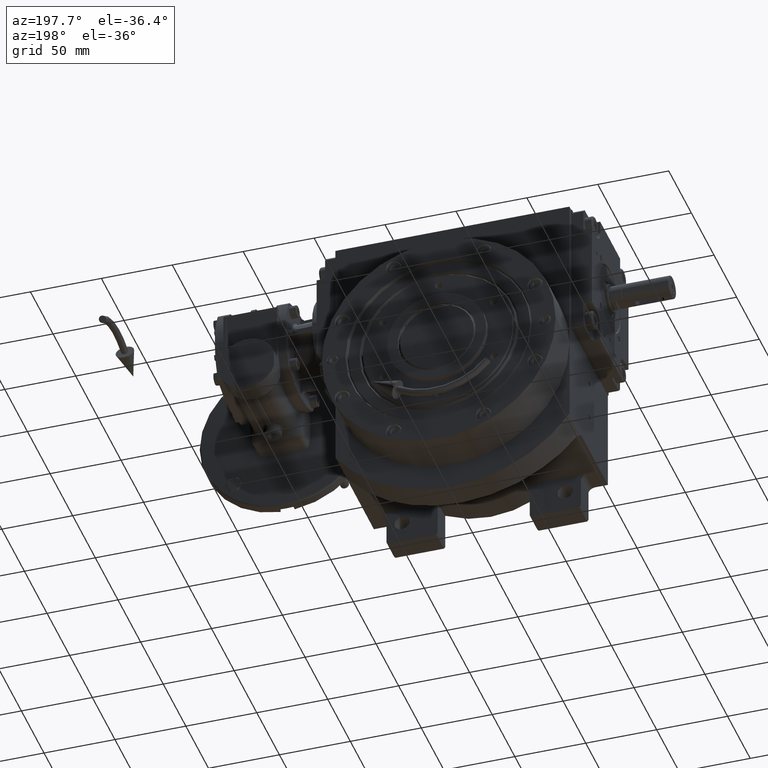
[diagram: clean part render]
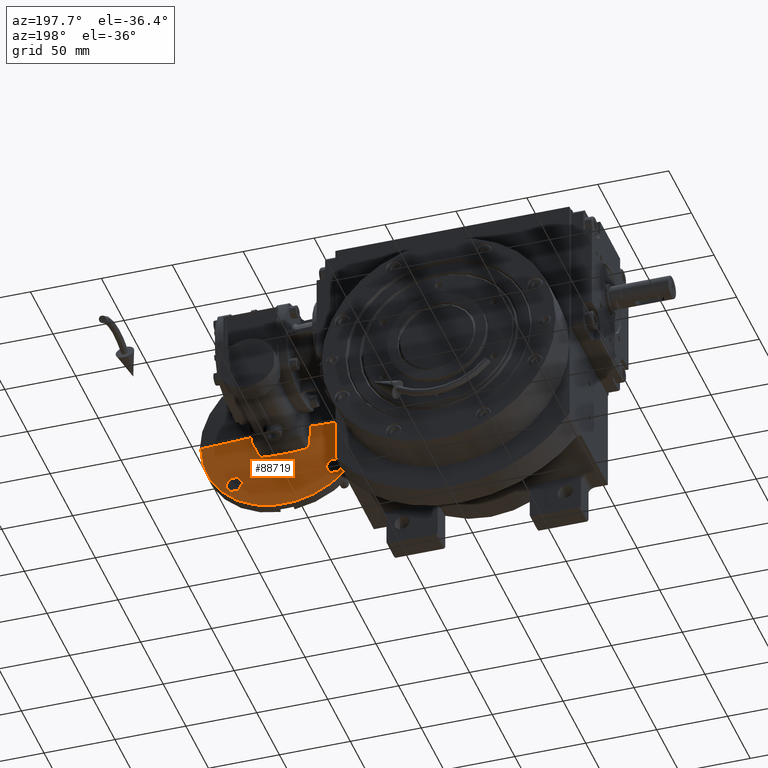
[diagram: same view with one face highlighted and labeled with its STEP entity id]
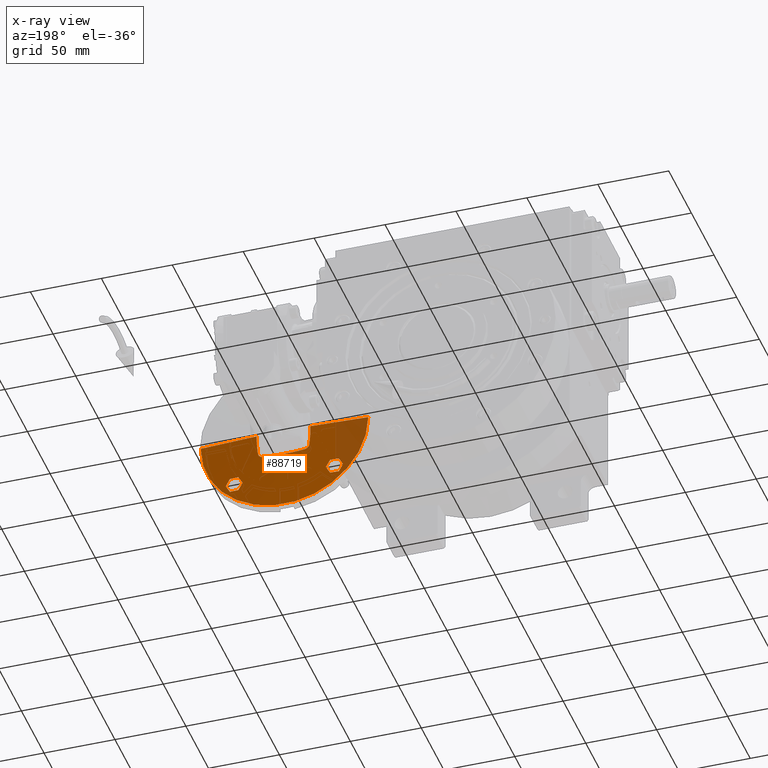
[diagram: x-ray of the same camera — body ghosted, the highlighted face saturated]
A machine part, auxiliary view. The second image highlights one B-rep face of the part: STEP entity #88719.
The next image is the same camera in x-ray: the body ghosted, the highlighted face saturated — about 15% of this face is hidden behind the body in this view.
In plain terms, the highlighted conical surface has half-angle 87.103 deg.
Its self-contained STEP definition (entity closure, byte-faithful):
#1003 = CARTESIAN_POINT ( 'NONE',  ( -32.00585476977998667, 67.95386209068189487, 41.55432077953976489 ) ) ;
#1212 = CARTESIAN_POINT ( 'NONE',  ( -37.64607838296998921, 58.15533905933165215, 41.40453838840976886 ) ) ;
#1278 = CARTESIAN_POINT ( 'NONE',  ( 18.79542182934317651, 35.00459606885684849, 39.97883802025270228 ) ) ;
#1961 = VERTEX_POINT ( 'NONE', #89464 ) ;
#1998 = EDGE_CURVE ( 'NONE', #70187, #21463, #18428, .T. ) ;
#2188 = CARTESIAN_POINT ( 'NONE',  ( -8.703486706035672427, 46.68434787104853001, 40.00677571769369223 ) ) ;
#2220 = CARTESIAN_POINT ( 'NONE',  ( 18.39537536237713056, 40.09061341052760241, 40.07635317051466473 ) ) ;
#2680 = CARTESIAN_POINT ( 'NONE',  ( -4.653153046060355180, 46.91032088017187363, 39.94911206547149618 ) ) ;
#3256 = CARTESIAN_POINT ( 'NONE',  ( -18.92824910801079952, 32.15311443586601570, 39.94440566324492892 ) ) ;
#3473 = CARTESIAN_POINT ( 'NONE',  ( 30.32052400173000706, 65.03478357286188327, 41.38584311701976759 ) ) ;
#3749 = B_SPLINE_CURVE_WITH_KNOTS ( 'NONE', 3,
 ( #76764, #92098, #30818, #84672, #17919, #77718 ),
 .UNSPECIFIED., .F., .F.,
 ( 4, 1, 1, 4 ),
 ( 0.000000000000000000, 0.3333333333333000081, 0.6666666666667000474, 1.000000000000000000 ),
 .UNSPECIFIED. ) ;
#4354 = ORIENTED_EDGE ( 'NONE', *, *, #24362, .F. ) ;
#4597 = EDGE_CURVE ( 'NONE', #28575, #38188, #78197, .T. ) ;
#4992 = CARTESIAN_POINT ( 'NONE',  ( 3.307533421194631451, 46.95442179101929270, 39.93748087588320317 ) ) ;
#5114 = CARTESIAN_POINT ( 'NONE',  ( -39.35572123152000756, 66.82647388740188887, 41.76080980303999723 ) ) ;
#5276 = CARTESIAN_POINT ( 'NONE',  ( -32.35311765953998986, 58.15533905933165215, 41.20187174333976543 ) ) ;
#5840 = CARTESIAN_POINT ( 'NONE',  ( -17.27818441440031805, 44.64969037339514557, 40.17783912591538353 ) ) ;
#6387 = CARTESIAN_POINT ( 'NONE',  ( -29.35089625976000605, 63.35533905933188237, 41.28907612578000652 ) ) ;
#6463 = EDGE_CURVE ( 'NONE', #90730, #43112, #45032, .T. ) ;
#6594 = CARTESIAN_POINT ( 'NONE',  ( 29.35089625976000605, 63.35533905933188237, 41.28907612578000652 ) ) ;
#7681 = CARTESIAN_POINT ( 'NONE',  ( 18.78171789322339436, 35.23463356859000584, 39.98232443131080061 ) ) ;
#7794 = VERTEX_POINT ( 'NONE', #65136 ) ;
#8166 = CARTESIAN_POINT ( 'NONE',  ( 18.26347028607235146, 41.33794503218003058, 40.10689626045934375 ) ) ;
#8628 = CARTESIAN_POINT ( 'NONE',  ( -3.759415430785205015, 46.94112730932102551, 39.94101155117419211 ) ) ;
#8667 = CARTESIAN_POINT ( 'NONE',  ( 18.86221104927104619, 33.75433396995044433, 39.96164650814401398 ) ) ;
#9000 = CARTESIAN_POINT ( 'NONE',  ( 12.03235637888628951, 46.42376113785291381, 40.07169622953545485 ) ) ;
#9154 = CARTESIAN_POINT ( 'NONE',  ( 18.10570677838000009, 42.62294815769141110, 40.14154128409975897 ) ) ;
#9838 = CARTESIAN_POINT ( 'NONE',  ( 41.00616503775999888, 62.74285675870189039, 41.68347771132976476 ) ) ;
#10822 = CARTESIAN_POINT ( 'NONE',  ( -14.62294780272999084, 46.10570682196141945, 40.14154127452976439 ) ) ;
#10962 = B_SPLINE_CURVE_WITH_KNOTS ( 'NONE', 3,
 ( #38835, #16039, #46225, #76350, #8628, #78277, #64447, #2680, #55567, #41725, #94594, #49133, #48152, #42224, #18477, #26875, #2188, #32345, #47666, #57043, #85692, #77787 ),
 .UNSPECIFIED., .F., .F.,
 ( 4, 2, 2, 1, 1, 2, 2, 2, 1, 1, 2, 2, 4 ),
 ( 0.4999808317626868170, 0.6249856238220141691, 0.6327984233257222257, 0.6406112228294301714, 0.6562368218368461736, 0.6874880198516780672, 0.7499904158813419652, 0.7578032153850500219, 0.7656160148887581895, 0.7812416138961741918, 0.8124928119110064184, 0.8749952079406708716, 1.000000000000000000 ),
 .UNSPECIFIED. ) ;
#11428 = CARTESIAN_POINT ( 'NONE',  ( 6.675642760527762398, 46.81430497254617507, 39.97401120194078317 ) ) ;
#11634 = CARTESIAN_POINT ( 'NONE',  ( -18.61236518150219510, 37.64308999784397969, 40.02449364061558867 ) ) ;
#11647 = ORIENTED_EDGE ( 'NONE', *, *, #35514, .T. ) ;
#11747 = CARTESIAN_POINT ( 'NONE',  ( -59.05053774742999195, 28.00000000000093436, 41.95195492215976429 ) ) ;
#12389 = CARTESIAN_POINT ( 'NONE',  ( -41.35978185890002123, 63.35533905933188237, 41.71721783744000334 ) ) ;
#12452 = EDGE_CURVE ( 'NONE', #14382, #51955, #45264, .T. ) ;
#12559 = CARTESIAN_POINT ( 'NONE',  ( 17.27817697784776030, 44.64968503486191054, 40.17783866744353816 ) ) ;
#12876 = CARTESIAN_POINT ( 'NONE',  ( -38.67177040355998230, 58.69956664735165219, 41.46236169687976059 ) ) ;
#12970 = ORIENTED_EDGE ( 'NONE', *, *, #29271, .F. ) ;
#14219 = CARTESIAN_POINT ( 'NONE',  ( -18.05156585783624479, 43.06393259781779648, 40.15343068424608930 ) ) ;
#14382 = VERTEX_POINT ( 'NONE', #85755 ) ;
#14486 = CARTESIAN_POINT ( 'NONE',  ( 32.01829038265000094, 58.73527691466165379, 41.20948658544976695 ) ) ;
#14801 = CARTESIAN_POINT ( 'NONE',  ( 38.35756045910999745, 58.15533905933165215, 41.43284179079976326 ) ) ;
#14971 = CARTESIAN_POINT ( 'NONE',  ( 29.35089625976000605, 63.35533905933188237, 41.28907612578000652 ) ) ;
#16039 = CARTESIAN_POINT ( 'NONE',  ( -1.205514651385882541, 46.99999766876038620, 39.92530108666492339 ) ) ;
#16357 = CARTESIAN_POINT ( 'NONE',  ( 18.10570677838000009, 42.62294815769141110, 40.14154128409975897 ) ) ;
#16510 = CARTESIAN_POINT ( 'NONE',  ( -32.35311765953998986, 58.15533905933165215, 41.20187174333976543 ) ) ;
#16576 = CARTESIAN_POINT ( 'NONE',  ( 18.95335393573451555, 31.34586320199458953, 39.93776278507416322 ) ) ;
#16706 = ORIENTED_EDGE ( 'NONE', *, *, #29739, .F. ) ;
#17039 = VECTOR ( 'NONE', #72471, 1000.000000000000114 ) ;
#17207 = CARTESIAN_POINT ( 'NONE',  ( 41.02507180973000089, 63.93507387029188749, 41.72340524457000299 ) ) ;
#17214 = EDGE_CURVE ( 'NONE', #42198, #21463, #78617, .T. ) ;
#17919 = CARTESIAN_POINT ( 'NONE',  ( 37.66676103572999779, 68.55533905933189942, 41.76453698669976689 ) ) ;
#18037 = EDGE_CURVE ( 'NONE', #64209, #84226, #36083, .T. ) ;
#18309 = CARTESIAN_POINT ( 'NONE',  ( 31.32106462518000001, 66.76777076771189456, 41.48582392447000444 ) ) ;
#18375 = CARTESIAN_POINT ( 'NONE',  ( 7.053735655023313456, 46.79251809520259542, 39.97957659328078250 ) ) ;
#18428 = B_SPLINE_CURVE_WITH_KNOTS ( 'NONE', 3,
 ( #93851, #78039, #70648, #31613, #9838, #78520 ),
 .UNSPECIFIED., .F., .F.,
 ( 4, 1, 1, 4 ),
 ( 0.000000000000000000, 0.3333333333333000081, 0.6666666666667000474, 1.000000000000000000 ),
 .UNSPECIFIED. ) ;
#18477 = CARTESIAN_POINT ( 'NONE',  ( -7.728046292074904677, 46.75104225326969498, 39.99008551386199173 ) ) ;
#18528 = CARTESIAN_POINT ( 'NONE',  ( 17.92543019919315483, 43.48967417349379616, 40.16246868723585806 ) ) ;
#18833 = EDGE_CURVE ( 'NONE', #81476, #53457, #92363, .T. ) ;
#19546 = CARTESIAN_POINT ( 'NONE',  ( -18.90320291073076220, 32.82582356061124784, 39.95097023124787938 ) ) ;
#20749 = CARTESIAN_POINT ( 'NONE',  ( -32.35311765953998986, 58.15533905933165215, 41.20187174333976543 ) ) ;
#21463 = VERTEX_POINT ( 'NONE', #95578 ) ;
#21659 = B_SPLINE_CURVE_WITH_KNOTS ( 'NONE', 3,
 ( #76110, #38590, #68730, #62271, #1003, #31148 ),
 .UNSPECIFIED., .F., .F.,
 ( 4, 1, 1, 4 ),
 ( 0.000000000000000000, 0.3333333333333000081, 0.6666666666667000474, 1.000000000000000000 ),
 .UNSPECIFIED. ) ;
#23031 = CARTESIAN_POINT ( 'NONE',  ( 18.99999894939999479, 28.00000000001094591, 39.92530130046976211 ) ) ;
#23237 = CARTESIAN_POINT ( 'NONE',  ( -14.62294780272999084, 46.10570682196141945, 40.14154127452976439 ) ) ;
#23410 = CARTESIAN_POINT ( 'NONE',  ( 5.755536990199312014E-08, 47.00000000057552541, 39.92530120483741030 ) ) ;
#23628 = CARTESIAN_POINT ( 'NONE',  ( 0.000000000000000000, 28.00000000000094147, 40.93862802361976350 ) ) ;
#24137 = EDGE_CURVE ( 'NONE', #43112, #51712, #56807, .T. ) ;
#24361 = VERTEX_POINT ( 'NONE', #23410 ) ;
#24362 = EDGE_CURVE ( 'NONE', #1961, #84226, #86394, .T. ) ;
#24433 = EDGE_CURVE ( 'NONE', #53171, #42198, #3749, .T. ) ;
#24603 = DIRECTION ( 'NONE',  ( 1.000000000000000000, 0.000000000000000000, 0.000000000000000000 ) ) ;
#25084 = EDGE_LOOP ( 'NONE', ( #73930, #37842, #36904, #96545, #16706, #52964 ) ) ;
#25322 = B_SPLINE_CURVE_WITH_KNOTS ( 'NONE', 3,
 ( #57548, #72827, #35783, #5114, #50118, #57051 ),
 .UNSPECIFIED., .F., .F.,
 ( 4, 1, 1, 4 ),
 ( 0.000000000000000000, 0.3333333333333000081, 0.6666666666667000474, 1.000000000000000000 ),
 .UNSPECIFIED. ) ;
#25786 = CARTESIAN_POINT ( 'NONE',  ( 2.102746083151895817, 46.98176445643979804, 39.93013538469411827 ) ) ;
#26283 = CARTESIAN_POINT ( 'NONE',  ( 5.755536990199312014E-08, 47.00000000057552541, 39.92530120483741030 ) ) ;
#26480 = CARTESIAN_POINT ( 'NONE',  ( -18.94277622496464630, 31.70635647501952903, 39.94057393353006091 ) ) ;
#26581 = B_SPLINE_CURVE_WITH_KNOTS ( 'NONE', 3,
 ( #46593, #9000, #54496, #77200, #18375, #57909, #11428, #42589, #86088, #40648, #70785, #93996, #93498, #4992, #41622, #79634, #94970, #25786, #27245, #55957, #26283 ),
 .UNSPECIFIED., .F., .F.,
 ( 4, 2, 2, 1, 1, 2, 2, 2, 1, 2, 2, 4 ),
 ( 0.000000000000000000, 0.2499904158813436861, 0.2578026163776356294, 0.2656148168739275173, 0.2812392178665114595, 0.3124880198516791774, 0.3749856238220146687, 0.3827978243183067231, 0.3906100248145986664, 0.4062344258071827197, 0.4374832277923508261, 0.4999808317626868170 ),
 .UNSPECIFIED. ) ;
#26829 = ORIENTED_EDGE ( 'NONE', *, *, #6463, .T. ) ;
#26875 = CARTESIAN_POINT ( 'NONE',  ( -8.251944719088326607, 46.71657998035165349, 39.99875135066626086 ) ) ;
#26963 = CARTESIAN_POINT ( 'NONE',  ( -18.56192713792614057, 38.24969341400286282, 40.03672595787922006 ) ) ;
#27245 = CARTESIAN_POINT ( 'NONE',  ( 1.202207970851124186, 46.99529169443259491, 39.92650981631681617 ) ) ;
#27892 = CARTESIAN_POINT ( 'NONE',  ( 15.48881193268321432, 45.92586073060493845, 40.16245579428478862 ) ) ;
#28574 = CARTESIAN_POINT ( 'NONE',  ( -15.06389918224934377, 46.05157000039027793, 40.15342978465449875 ) ) ;
#28575 = VERTEX_POINT ( 'NONE', #23237 ) ;
#29271 = EDGE_CURVE ( 'NONE', #90730, #1961, #49259, .T. ) ;
#29558 = CARTESIAN_POINT ( 'NONE',  ( -16.28850172614797032, 45.53585385532656460, 40.17476457775653387 ) ) ;
#29739 = EDGE_CURVE ( 'NONE', #56863, #74601, #25322, .T. ) ;
#30383 = B_SPLINE_CURVE_WITH_KNOTS ( 'NONE', 3,
 ( #83128, #60908, #77172, #83613, #84597, #38184 ),
 .UNSPECIFIED., .F., .F.,
 ( 4, 1, 1, 4 ),
 ( 0.000000000000000000, 0.3333333333333000081, 0.6666666666667000474, 1.000000000000000000 ),
 .UNSPECIFIED. ) ;
#30639 = CARTESIAN_POINT ( 'NONE',  ( 37.64424770759000438, 58.15533905933165215, 41.40446556247976417 ) ) ;
#30818 = CARTESIAN_POINT ( 'NONE',  ( 34.30488180044999069, 68.55533905933189942, 41.65141112746976404 ) ) ;
#31148 = CARTESIAN_POINT ( 'NONE',  ( -32.35311765953998986, 68.55533905933189942, 41.58907202691976579 ) ) ;
#31185 = EDGE_CURVE ( 'NONE', #24361, #28575, #10962, .T. ) ;
#31288 = ORIENTED_EDGE ( 'NONE', *, *, #12452, .F. ) ;
#31613 = CARTESIAN_POINT ( 'NONE',  ( 40.31229655239999943, 61.54104128829165177, 41.61742794730976414 ) ) ;
#31897 = CARTESIAN_POINT ( 'NONE',  ( 18.90329813134657755, 32.85105730058419482, 39.95095771887569214 ) ) ;
#31955 = CARTESIAN_POINT ( 'NONE',  ( -18.26371527776154480, 41.33594954474617822, 40.10684246003787479 ) ) ;
#32278 = DIRECTION ( 'NONE',  ( 1.000000000000000000, 0.000000000000000000, 0.000000000000000000 ) ) ;
#32345 = CARTESIAN_POINT ( 'NONE',  ( -9.610738534763813234, 46.61612298723321146, 40.02361979429451111 ) ) ;
#32505 = DIRECTION ( 'NONE',  ( 2.651382592411505179E-48, -1.887379141862762174E-15, 1.000000000000000000 ) ) ;
#32784 = CARTESIAN_POINT ( 'NONE',  ( 38.35756045910999745, 58.15533905933165215, 41.43284179079976326 ) ) ;
#33417 = CARTESIAN_POINT ( 'NONE',  ( -18.73419915478507747, 35.98378458608785024, 39.99432102003819978 ) ) ;
#33864 = CARTESIAN_POINT ( 'NONE',  ( 16.64969025405823189, 45.27818450553889562, 40.17783912507398725 ) ) ;
#34243 = VERTEX_POINT ( 'NONE', #39115 ) ;
#34687 = B_SPLINE_CURVE_WITH_KNOTS ( 'NONE', 3,
 ( #80055, #63784, #18309, #3473, #41068, #71198 ),
 .UNSPECIFIED., .F., .F.,
 ( 4, 1, 1, 4 ),
 ( 0.000000000000000000, 0.3333333333333000081, 0.6666666666667000474, 1.000000000000000000 ),
 .UNSPECIFIED. ) ;
#35400 = CARTESIAN_POINT ( 'NONE',  ( 18.99999894939999479, 28.00000000001094591, 39.92530130046976211 ) ) ;
#35514 = EDGE_CURVE ( 'NONE', #51712, #24361, #26581, .T. ) ;
#35771 = EDGE_CURVE ( 'NONE', #34243, #7794, #21659, .T. ) ;
#35783 = CARTESIAN_POINT ( 'NONE',  ( -40.35620366244999246, 65.09358748495189673, 41.73697954953976108 ) ) ;
#36083 = LINE ( 'NONE', #50905, #36764 ) ;
#36764 = VECTOR ( 'NONE', #49942, 1000.000000000000227 ) ;
#36904 = ORIENTED_EDGE ( 'NONE', *, *, #35771, .T. ) ;
#37262 = CARTESIAN_POINT ( 'NONE',  ( 30.34952971570000102, 61.62565517550165595, 41.25529740494976494 ) ) ;
#37842 = ORIENTED_EDGE ( 'NONE', *, *, #38763, .F. ) ;
#38077 = CARTESIAN_POINT ( 'NONE',  ( 34.25647308583000239, 58.15533905933165215, 41.27295357628976546 ) ) ;
#38184 = CARTESIAN_POINT ( 'NONE',  ( -32.35311765953998986, 68.55533905933189942, 41.58907202691976579 ) ) ;
#38188 = VERTEX_POINT ( 'NONE', #88179 ) ;
#38371 = CARTESIAN_POINT ( 'NONE',  ( 18.81081164800877303, 34.73818199831421794, 39.97490686229069468 ) ) ;
#38570 = CARTESIAN_POINT ( 'NONE',  ( 32.97827128125999252, 58.15533905933165215, 41.22501273869976757 ) ) ;
#38590 = CARTESIAN_POINT ( 'NONE',  ( -29.67088909838000532, 63.90958291388187718, 41.32099810537000195 ) ) ;
#38763 = EDGE_CURVE ( 'NONE', #34243, #81476, #47224, .T. ) ;
#38835 = CARTESIAN_POINT ( 'NONE',  ( 5.755536990199312014E-08, 47.00000000057552541, 39.92530120483741030 ) ) ;
#38877 = CARTESIAN_POINT ( 'NONE',  ( 18.98133743937329498, 30.12701413046736221, 39.93024716452701028 ) ) ;
#39115 = CARTESIAN_POINT ( 'NONE',  ( -29.35089625976000605, 63.35533905933188237, 41.28907612578000652 ) ) ;
#39825 = CARTESIAN_POINT ( 'NONE',  ( 18.95964892732616391, 31.11656128398198717, 39.93608191364073434 ) ) ;
#40648 = CARTESIAN_POINT ( 'NONE',  ( 4.801351246403769757, 46.90529177804275918, 39.95043857249287100 ) ) ;
#40844 = CARTESIAN_POINT ( 'NONE',  ( -18.63644804107383735, 37.33926402384003751, 40.01859645429647827 ) ) ;
#41068 = CARTESIAN_POINT ( 'NONE',  ( 29.67114340784999982, 63.91002339080188932, 41.32102347487999339 ) ) ;
#41233 = B_SPLINE_CURVE_WITH_KNOTS ( 'NONE', 3,
 ( #12389, #42577, #95437, #88501, #12876, #72706 ),
 .UNSPECIFIED., .F., .F.,
 ( 4, 1, 1, 4 ),
 ( 0.000000000000000000, 0.3333333333333000081, 0.6666666666667000474, 1.000000000000000000 ),
 .UNSPECIFIED. ) ;
#41331 = CARTESIAN_POINT ( 'NONE',  ( -18.81835169660866569, 34.62825465215922094, 39.97302296602656213 ) ) ;
#41622 = CARTESIAN_POINT ( 'NONE',  ( 3.080898226564459552, 46.96057082595614673, 39.93583805821930355 ) ) ;
#41725 = CARTESIAN_POINT ( 'NONE',  ( -5.997970615422245189, 46.85138666444245814, 39.96446751509013495 ) ) ;
#41774 = CARTESIAN_POINT ( 'NONE',  ( 16.28936197353043269, 45.53542426302876578, 40.17477743901274323 ) ) ;
#41820 = CARTESIAN_POINT ( 'NONE',  ( -18.68208202452089495, 36.73456380510827302, 40.00733702817543502 ) ) ;
#42003 = AXIS2_PLACEMENT_3D ( 'NONE', #23628, #32505, #24603 ) ;
#42198 = VERTEX_POINT ( 'NONE', #60744 ) ;
#42224 = CARTESIAN_POINT ( 'NONE',  ( -7.504054195960048190, 46.76514870823488934, 39.98652071053039947 ) ) ;
#42577 = CARTESIAN_POINT ( 'NONE',  ( -41.00657502553001166, 62.74356687834188762, 41.68351683005976582 ) ) ;
#42589 = CARTESIAN_POINT ( 'NONE',  ( 6.148209052827432686, 46.84297161078512062, 39.96663979094693531 ) ) ;
#43021 = CARTESIAN_POINT ( 'NONE',  ( -30.35002122395000157, 61.62480385824165552, 41.25528182602976557 ) ) ;
#43112 = VERTEX_POINT ( 'NONE', #16357 ) ;
#43201 = EDGE_CURVE ( 'NONE', #53171, #51955, #34687, .T. ) ;
#43650 = ORIENTED_EDGE ( 'NONE', *, *, #17214, .F. ) ;
#43992 = CARTESIAN_POINT ( 'NONE',  ( -32.01848563541001624, 58.73493872696165141, 41.20948214489976635 ) ) ;
#45004 = CARTESIAN_POINT ( 'NONE',  ( 36.24850017958000592, 58.15533905933165215, 41.34954874703976202 ) ) ;
#45024 = B_SPLINE_CURVE_WITH_KNOTS ( 'NONE', 3,
 ( #69537, #31955, #62109, #86293, #26963, #11634, #40844, #41820, #70979, #33417, #78372, #87270, #71962, #48738, #41331, #64536, #94687, #19546, #94199, #3256, #57129, #63560, #26480, #56652, #79349, #79841 ),
 .UNSPECIFIED., .F., .F.,
 ( 4, 2, 2, 2, 2, 1, 2, 2, 2, 2, 1, 2, 2, 4 ),
 ( 0.000000000000000000, 0.2500000000000068279, 0.3125000000000096034, 0.3750000000000123790, 0.4375000000000150990, 0.4687500000000165423, 0.4843750000000172085, 0.5000000000000178746, 0.6250000000000135447, 0.6875000000000105471, 0.7187500000000091038, 0.7343750000000091038, 0.7500000000000089928, 1.000000000000000000 ),
 .UNSPECIFIED. ) ;
#45032 = B_SPLINE_CURVE_WITH_KNOTS ( 'NONE', 3,
 ( #23031, #84285, #47230, #38877, #85245, #69006, #39825, #16576, #69961, #62538, #45302, #31897, #8667, #46755, #54649, #38371, #1278, #75892, #91722, #7681, #84778, #76874, #2220, #8166, #9154 ),
 .UNSPECIFIED., .F., .F.,
 ( 4, 2, 2, 1, 2, 2, 2, 2, 1, 1, 2, 2, 2, 4 ),
 ( 0.000000000000000000, 0.1249999999999983347, 0.1874999999999975020, 0.2187499999999974465, 0.2343749999999970579, 0.2499999999999967248, 0.3749999999999924505, 0.4374999999999896194, 0.4687499999999889533, 0.4843749999999885647, 0.4921874999999883427, 0.4999999999999881206, 0.7499999999999941158, 1.000000000000000000 ),
 .UNSPECIFIED. ) ;
#45264 = B_SPLINE_CURVE_WITH_KNOTS ( 'NONE', 3,
 ( #81232, #14486, #74783, #37262, #67407, #14971 ),
 .UNSPECIFIED., .F., .F.,
 ( 4, 1, 1, 4 ),
 ( 0.000000000000000000, 0.3333333333333000081, 0.6666666666667000474, 1.000000000000000000 ),
 .UNSPECIFIED. ) ;
#45302 = CARTESIAN_POINT ( 'NONE',  ( 18.92615230765151679, 32.25180015260604449, 39.94497625591790779 ) ) ;
#45772 = ORIENTED_EDGE ( 'NONE', *, *, #24433, .F. ) ;
#46225 = CARTESIAN_POINT ( 'NONE',  ( -2.398241198411121378, 46.98216177417146611, 39.93013588647425394 ) ) ;
#46593 = CARTESIAN_POINT ( 'NONE',  ( 14.62294815768999712, 46.10570677838141052, 40.14154128409975897 ) ) ;
#46755 = CARTESIAN_POINT ( 'NONE',  ( 18.84736913908810862, 34.05615354033155029, 39.96549553703872704 ) ) ;
#47224 = B_SPLINE_CURVE_WITH_KNOTS ( 'NONE', 3,
 ( #6387, #80069, #43021, #58823, #43992, #20749 ),
 .UNSPECIFIED., .F., .F.,
 ( 4, 1, 1, 4 ),
 ( 0.000000000000000000, 0.3333333333333000081, 0.6666666666667000474, 1.000000000000000000 ),
 .UNSPECIFIED. ) ;
#47230 = CARTESIAN_POINT ( 'NONE',  ( 18.99517816921931868, 29.21606929811590803, 39.92653765515667885 ) ) ;
#47666 = CARTESIAN_POINT ( 'NONE',  ( -10.22093456148651569, 46.56560920254165836, 40.03590512779717159 ) ) ;
#48152 = CARTESIAN_POINT ( 'NONE',  ( -7.354835526813291224, 46.77440658114519323, 39.98417731424873978 ) ) ;
#48695 = CARTESIAN_POINT ( 'NONE',  ( 15.06393256769039724, 46.05156586154533471, 40.15343068343423027 ) ) ;
#48738 = CARTESIAN_POINT ( 'NONE',  ( -18.77696228455774374, 35.31319468767258485, 39.98353082646356427 ) ) ;
#49133 = CARTESIAN_POINT ( 'NONE',  ( -7.281622029427824216, 46.77888163301719970, 39.98304267994201666 ) ) ;
#49184 = CARTESIAN_POINT ( 'NONE',  ( 14.62294815768999712, 46.10570677838141052, 40.14154128409975897 ) ) ;
#49259 = LINE ( 'NONE', #35400, #17039 ) ;
#49669 = ORIENTED_EDGE ( 'NONE', *, *, #24137, .T. ) ;
#49942 = DIRECTION ( 'NONE',  ( -0.9987221517813756888, 1.649522847435112095E-13, 0.05053774372860879438 ) ) ;
#50118 = CARTESIAN_POINT ( 'NONE',  ( -38.69003644154999932, 67.97947376545189968, 41.77894671967976592 ) ) ;
#50438 = EDGE_LOOP ( 'NONE', ( #49669, #11647, #80329, #87237, #95288, #83389, #4354, #12970, #26829 ) ) ;
#50905 = CARTESIAN_POINT ( 'NONE',  ( -18.99999999999998934, 27.99999999999094058, 39.92530135362977006 ) ) ;
#51712 = VERTEX_POINT ( 'NONE', #74915 ) ;
#51807 = CARTESIAN_POINT ( 'NONE',  ( -16.64968487319866952, 45.27817711129915068, 40.17783866660164449 ) ) ;
#51955 = VERTEX_POINT ( 'NONE', #6594 ) ;
#52964 = ORIENTED_EDGE ( 'NONE', *, *, #66512, .T. ) ;
#53171 = VERTEX_POINT ( 'NONE', #70841 ) ;
#53457 = VERTEX_POINT ( 'NONE', #87436 ) ;
#54496 = CARTESIAN_POINT ( 'NONE',  ( 9.589735601737151782, 46.64002319694863985, 40.01831298138518633 ) ) ;
#54649 = CARTESIAN_POINT ( 'NONE',  ( 18.82329927715637652, 34.51056001560183972, 39.97169822908872305 ) ) ;
#55567 = CARTESIAN_POINT ( 'NONE',  ( -5.100724342323826654, 46.89180614671332137, 39.95394804261291455 ) ) ;
#55957 = CARTESIAN_POINT ( 'NONE',  ( 0.6027111986136006738, 47.00000116725438915, 39.92530126397431900 ) ) ;
#56606 = CARTESIAN_POINT ( 'NONE',  ( 18.05156992106730485, 43.06389950235168840, 40.15342979195808937 ) ) ;
#56652 = CARTESIAN_POINT ( 'NONE',  ( -18.98196517914299619, 30.41126859746138678, 39.93018847826299123 ) ) ;
#56807 = B_SPLINE_CURVE_WITH_KNOTS ( 'NONE', 3,
 ( #79794, #56606, #18528, #72395, #12559, #33864, #41774, #27892, #48695, #49184 ),
 .UNSPECIFIED., .F., .F.,
 ( 4, 2, 2, 2, 4 ),
 ( 0.000000000000000000, 0.2499999999999997780, 0.4999999999999995559, 0.7499999999999993339, 1.000000000000000000 ),
 .UNSPECIFIED. ) ;
#56863 = VERTEX_POINT ( 'NONE', #61124 ) ;
#57043 = CARTESIAN_POINT ( 'NONE',  ( -12.06951515211818560, 46.39795788391090525, 40.07584689635056208 ) ) ;
#57051 = CARTESIAN_POINT ( 'NONE',  ( -38.35756045911001166, 68.55533905933189942, 41.78855697392976509 ) ) ;
#57129 = CARTESIAN_POINT ( 'NONE',  ( -18.93567805175101881, 31.92900373775866285, 39.94244838743153281 ) ) ;
#57548 = CARTESIAN_POINT ( 'NONE',  ( -41.35978185890002123, 63.35533905933188237, 41.71721783744000334 ) ) ;
#57909 = CARTESIAN_POINT ( 'NONE',  ( 6.902396962256932333, 46.80132696598994357, 39.97732925337257370 ) ) ;
#57980 = AXIS2_PLACEMENT_3D ( 'NONE', #70345, #75790, #32278 ) ;
#58823 = CARTESIAN_POINT ( 'NONE',  ( -31.34993286675000235, 59.89290608983165498, 41.22614789663976609 ) ) ;
#60744 = CARTESIAN_POINT ( 'NONE',  ( 38.35756045910999745, 68.55533905933189942, 41.78855697392976509 ) ) ;
#60908 = CARTESIAN_POINT ( 'NONE',  ( -37.66552507775000436, 68.55533905933189942, 41.76449401084976643 ) ) ;
#61081 = EDGE_CURVE ( 'NONE', #38188, #64209, #45024, .T. ) ;
#61124 = CARTESIAN_POINT ( 'NONE',  ( -41.35978185890002123, 63.35533905933188237, 41.71721783744000334 ) ) ;
#61298 = CARTESIAN_POINT ( 'NONE',  ( 32.35311765953998986, 58.15533905933165215, 41.20187174333976543 ) ) ;
#62071 = ORIENTED_EDGE ( 'NONE', *, *, #43201, .T. ) ;
#62109 = CARTESIAN_POINT ( 'NONE',  ( -18.39626555142289277, 40.08546770092622324, 40.07623731179140236 ) ) ;
#62168 = FACE_BOUND ( 'NONE', #25084, .T. ) ;
#62206 = CARTESIAN_POINT ( 'NONE',  ( 40.35640835021001038, 65.09323295534188958, 41.73697514896976202 ) ) ;
#62271 = CARTESIAN_POINT ( 'NONE',  ( -31.32045338900998743, 66.76671207561189192, 41.48576280545999850 ) ) ;
#62538 = CARTESIAN_POINT ( 'NONE',  ( 18.94669593535954633, 31.57713314452691833, 39.93953455621409887 ) ) ;
#62694 = CARTESIAN_POINT ( 'NONE',  ( 41.35978185890000702, 63.35533905933188237, 41.71721783744000334 ) ) ;
#63560 = CARTESIAN_POINT ( 'NONE',  ( -18.94048748991358622, 31.77959434644411019, 39.94117906204630231 ) ) ;
#63784 = CARTESIAN_POINT ( 'NONE',  ( 32.00611681606000047, 67.95431596815188868, 41.55434700300976658 ) ) ;
#64135 = CONICAL_SURFACE ( 'NONE', #42003, 39.02526808577000139, 1.520237041828802260 ) ;
#64209 = VERTEX_POINT ( 'NONE', #88910 ) ;
#64447 = CARTESIAN_POINT ( 'NONE',  ( -4.131761778239647853, 46.92899185268895934, 39.94421167055998723 ) ) ;
#64536 = CARTESIAN_POINT ( 'NONE',  ( -18.85002344753541692, 34.02529443715775415, 39.96481945066414454 ) ) ;
#65136 = CARTESIAN_POINT ( 'NONE',  ( -32.35311765953998986, 68.55533905933189942, 41.58907202691976579 ) ) ;
#66512 = EDGE_CURVE ( 'NONE', #56863, #53457, #41233, .T. ) ;
#67222 = CARTESIAN_POINT ( 'NONE',  ( -38.35756045911001166, 68.55533905933189942, 41.78855697392976509 ) ) ;
#67407 = CARTESIAN_POINT ( 'NONE',  ( 29.68357761197000499, 62.77911805457188166, 41.27739428063976135 ) ) ;
#68730 = CARTESIAN_POINT ( 'NONE',  ( -30.31993040808000828, 65.03375543850188478, 41.38578384147976408 ) ) ;
#68940 = CARTESIAN_POINT ( 'NONE',  ( -34.26050031076000124, 58.15533905933165215, 41.27310601337975982 ) ) ;
#69006 = CARTESIAN_POINT ( 'NONE',  ( 18.96525999135691976, 30.88781869805002245, 39.93457492545903875 ) ) ;
#69537 = CARTESIAN_POINT ( 'NONE',  ( -18.10570677838000009, 42.62294815769141110, 40.14154128409975897 ) ) ;
#69900 = CARTESIAN_POINT ( 'NONE',  ( -38.35756045911001166, 58.15533905933165215, 41.43284179079976326 ) ) ;
#69961 = CARTESIAN_POINT ( 'NONE',  ( 18.94900145617551246, 31.49887095176830698, 39.93892200675238513 ) ) ;
#70187 = VERTEX_POINT ( 'NONE', #32784 ) ;
#70345 = CARTESIAN_POINT ( 'NONE',  ( 0.000000000000000000, 28.00000000000093436, 41.95195492215976429 ) ) ;
#70648 = CARTESIAN_POINT ( 'NONE',  ( 39.31218957297999594, 59.80880518693165016, 41.52269844127976484 ) ) ;
#70785 = CARTESIAN_POINT ( 'NONE',  ( 4.206022213650896013, 46.92776280321930926, 39.94455610745078644 ) ) ;
#70841 = CARTESIAN_POINT ( 'NONE',  ( 32.35311765953998986, 68.55533905933189942, 41.58907202691976579 ) ) ;
#70979 = CARTESIAN_POINT ( 'NONE',  ( -18.70364701996536994, 36.43359361266968932, 40.00197188374342971 ) ) ;
#71198 = CARTESIAN_POINT ( 'NONE',  ( 29.35089625976000605, 63.35533905933188237, 41.28907612578000652 ) ) ;
#71660 = ORIENTED_EDGE ( 'NONE', *, *, #1998, .T. ) ;
#71962 = CARTESIAN_POINT ( 'NONE',  ( -18.77248494711463067, 35.38613104342718430, 39.98466554122754246 ) ) ;
#72395 = CARTESIAN_POINT ( 'NONE',  ( 17.53585372426626776, 44.28850192700210187, 40.17476457983489979 ) ) ;
#72471 = DIRECTION ( 'NONE',  ( 0.9987221517813777982, -1.717874791105918859E-13, 0.05053774372856889574 ) ) ;
#72706 = CARTESIAN_POINT ( 'NONE',  ( -38.35756045911001166, 58.15533905933165215, 41.43284179079976326 ) ) ;
#72827 = CARTESIAN_POINT ( 'NONE',  ( -41.02498416724001373, 63.93522567153189584, 41.72340686471000026 ) ) ;
#73930 = ORIENTED_EDGE ( 'NONE', *, *, #18833, .F. ) ;
#74037 = CARTESIAN_POINT ( 'NONE',  ( -18.10570677838000009, 42.62294815769141110, 40.14154128409975897 ) ) ;
#74601 = VERTEX_POINT ( 'NONE', #67222 ) ;
#74783 = CARTESIAN_POINT ( 'NONE',  ( 31.34947687112998693, 59.89369589740164912, 41.22615992624977110 ) ) ;
#74915 = CARTESIAN_POINT ( 'NONE',  ( 14.62294815768999712, 46.10570677838141052, 40.14154128409975897 ) ) ;
#75521 = EDGE_CURVE ( 'NONE', #74601, #7794, #30383, .T. ) ;
#75790 = DIRECTION ( 'NONE',  ( 2.651382592411505179E-48, -1.887379141862762174E-15, 1.000000000000000000 ) ) ;
#75892 = CARTESIAN_POINT ( 'NONE',  ( 18.78864663782106703, 35.11896946572180411, 39.98056303492778341 ) ) ;
#76110 = CARTESIAN_POINT ( 'NONE',  ( -29.35089625976000605, 63.35533905933188237, 41.28907612578000652 ) ) ;
#76350 = CARTESIAN_POINT ( 'NONE',  ( -3.686220772114341848, 46.94340215121741977, 39.94040996210822669 ) ) ;
#76764 = CARTESIAN_POINT ( 'NONE',  ( 32.35311765953998986, 68.55533905933189942, 41.58907202691976579 ) ) ;
#76874 = CARTESIAN_POINT ( 'NONE',  ( 18.61731449360457447, 37.64931473345339441, 40.02347085801160631 ) ) ;
#77172 = CARTESIAN_POINT ( 'NONE',  ( -36.29810197057000920, 68.55533905933189942, 41.71763604366976352 ) ) ;
#77200 = CARTESIAN_POINT ( 'NONE',  ( 7.130816118383740410, 46.78795543795123990, 39.98073818659924683 ) ) ;
#77286 = CARTESIAN_POINT ( 'NONE',  ( -32.97999607599999194, 58.15533905933165215, 41.22507658455975843 ) ) ;
#77718 = CARTESIAN_POINT ( 'NONE',  ( 38.35756045910999745, 68.55533905933189942, 41.78855697392976509 ) ) ;
#77787 = CARTESIAN_POINT ( 'NONE',  ( -14.62294780272999084, 46.10570682196141945, 40.14154127452976439 ) ) ;
#78039 = CARTESIAN_POINT ( 'NONE',  ( 38.67138176060999655, 58.69889349802165412, 41.46232518401976819 ) ) ;
#78197 = B_SPLINE_CURVE_WITH_KNOTS ( 'NONE', 3,
 ( #10822, #28574, #81936, #29558, #51807, #5840, #95818, #80958, #14219, #74037 ),
 .UNSPECIFIED., .F., .F.,
 ( 4, 2, 2, 2, 4 ),
 ( 0.000000000000000000, 0.2499999999999993339, 0.4999999999999995559, 0.7499999999999997780, 1.000000000000000000 ),
 .UNSPECIFIED. ) ;
#78277 = CARTESIAN_POINT ( 'NONE',  ( -3.908355643779412247, 46.93635852472446146, 39.94227041097365571 ) ) ;
#78372 = CARTESIAN_POINT ( 'NONE',  ( -18.74902589169436951, 35.75929109645608861, 39.99059480142128820 ) ) ;
#78475 = CARTESIAN_POINT ( 'NONE',  ( 39.35594229354000362, 66.82609099674188258, 41.76080406075000440 ) ) ;
#78520 = CARTESIAN_POINT ( 'NONE',  ( 41.35978185890000702, 63.35533905933188237, 41.71721783744000334 ) ) ;
#78617 = B_SPLINE_CURVE_WITH_KNOTS ( 'NONE', 3,
 ( #93310, #84924, #78475, #62206, #17207, #62694 ),
 .UNSPECIFIED., .F., .F.,
 ( 4, 1, 1, 4 ),
 ( 0.000000000000000000, 0.3333333333333000081, 0.6666666666667000474, 1.000000000000000000 ),
 .UNSPECIFIED. ) ;
#79349 = CARTESIAN_POINT ( 'NONE',  ( -19.00000000751175477, 29.21208204081778703, 39.92530120519614201 ) ) ;
#79634 = CARTESIAN_POINT ( 'NONE',  ( 2.854800850885944374, 46.96605311975864794, 39.93436518491760978 ) ) ;
#79794 = CARTESIAN_POINT ( 'NONE',  ( 18.10570677838000009, 42.62294815769141110, 40.14154128409975897 ) ) ;
#79841 = CARTESIAN_POINT ( 'NONE',  ( -18.99999999999998934, 27.99999999999094058, 39.92530135362977006 ) ) ;
#80055 = CARTESIAN_POINT ( 'NONE',  ( 32.35311765953998986, 68.55533905933189942, 41.58907202691976579 ) ) ;
#80069 = CARTESIAN_POINT ( 'NONE',  ( -29.68378843023999991, 62.77875290660188057, 41.27738687791976702 ) ) ;
#80329 = ORIENTED_EDGE ( 'NONE', *, *, #31185, .T. ) ;
#80540 = EDGE_CURVE ( 'NONE', #70187, #14382, #83285, .T. ) ;
#80958 = CARTESIAN_POINT ( 'NONE',  ( -17.92586071363716016, 43.48881199017957755, 40.16245579550875533 ) ) ;
#81232 = CARTESIAN_POINT ( 'NONE',  ( 32.35311765953998986, 58.15533905933165215, 41.20187174333976543 ) ) ;
#81476 = VERTEX_POINT ( 'NONE', #5276 ) ;
#81591 = CARTESIAN_POINT ( 'NONE',  ( 18.99999894939999479, 28.00000000001094591, 39.92530130046976211 ) ) ;
#81936 = CARTESIAN_POINT ( 'NONE',  ( -15.48967389232401537, 45.92543030323736986, 40.16246868189577413 ) ) ;
#83128 = CARTESIAN_POINT ( 'NONE',  ( -38.35756045911001166, 68.55533905933189942, 41.78855697392976509 ) ) ;
#83285 = B_SPLINE_CURVE_WITH_KNOTS ( 'NONE', 3,
 ( #14801, #30639, #45004, #38077, #38570, #61298 ),
 .UNSPECIFIED., .F., .F.,
 ( 4, 1, 1, 4 ),
 ( 0.000000000000000000, 0.3333333333333000081, 0.6666666666667000474, 1.000000000000000000 ),
 .UNSPECIFIED. ) ;
#83389 = ORIENTED_EDGE ( 'NONE', *, *, #18037, .T. ) ;
#83613 = CARTESIAN_POINT ( 'NONE',  ( -34.30211823603998766, 68.55533905933189942, 41.65132123900976069 ) ) ;
#83904 = FACE_BOUND ( 'NONE', #94804, .T. ) ;
#84226 = VERTEX_POINT ( 'NONE', #11747 ) ;
#84285 = CARTESIAN_POINT ( 'NONE',  ( 18.99999895691122376, 28.60968681549036674, 39.92530115203324925 ) ) ;
#84597 = CARTESIAN_POINT ( 'NONE',  ( -32.99781399789000602, 68.55533905933189942, 41.60941660061975966 ) ) ;
#84672 = CARTESIAN_POINT ( 'NONE',  ( 36.30098456548999764, 68.55533905933189942, 41.71773376855976778 ) ) ;
#84778 = CARTESIAN_POINT ( 'NONE',  ( 18.70759406900263500, 36.45536141965717292, 40.00113163545316297 ) ) ;
#84924 = CARTESIAN_POINT ( 'NONE',  ( 38.69013126254999690, 67.97930953066189375, 41.77894397885976474 ) ) ;
#85182 = CARTESIAN_POINT ( 'NONE',  ( -36.25276905318000331, 58.15533905933165215, 41.34971537947976117 ) ) ;
#85245 = CARTESIAN_POINT ( 'NONE',  ( 18.97560541905797038, 30.43089018190017470, 39.93179279343132038 ) ) ;
#85518 = ORIENTED_EDGE ( 'NONE', *, *, #80540, .F. ) ;
#85692 = CARTESIAN_POINT ( 'NONE',  ( -13.32773437134157035, 46.26472387417131671, 40.10662097097680601 ) ) ;
#85755 = CARTESIAN_POINT ( 'NONE',  ( 32.35311765953998986, 58.15533905933165215, 41.20187174333976543 ) ) ;
#86088 = CARTESIAN_POINT ( 'NONE',  ( 5.698558488253030241, 46.86487503341746930, 39.96095693983278352 ) ) ;
#86293 = CARTESIAN_POINT ( 'NONE',  ( -18.53542622209898738, 38.55434480690067289, 40.04309797124932402 ) ) ;
#86394 = CIRCLE ( 'NONE', #57980, 59.05053774742999906 ) ;
#87237 = ORIENTED_EDGE ( 'NONE', *, *, #4597, .T. ) ;
#87270 = CARTESIAN_POINT ( 'NONE',  ( -18.76318928202034542, 35.53532990269992098, 39.98701740265789084 ) ) ;
#87436 = CARTESIAN_POINT ( 'NONE',  ( -38.35756045911001166, 58.15533905933165215, 41.43284179079976326 ) ) ;
#88179 = CARTESIAN_POINT ( 'NONE',  ( -18.10570677838000009, 42.62294815769141110, 40.14154128409975897 ) ) ;
#88501 = CARTESIAN_POINT ( 'NONE',  ( -39.31309696648999363, 59.81037683860164833, 41.52278409986976726 ) ) ;
#88719 = ADVANCED_FACE ( 'NONE', ( #83904, #62168, #92800 ), #64135, .T. ) ;
#88910 = CARTESIAN_POINT ( 'NONE',  ( -18.99999999999998934, 27.99999999999094058, 39.92530135362977006 ) ) ;
#89464 = CARTESIAN_POINT ( 'NONE',  ( 59.05053774742999195, 28.00000000000093436, 41.95195492215999877 ) ) ;
#90730 = VERTEX_POINT ( 'NONE', #81591 ) ;
#91722 = CARTESIAN_POINT ( 'NONE',  ( 18.78408952376345198, 35.19526333882942737, 39.98172198530926380 ) ) ;
#92098 = CARTESIAN_POINT ( 'NONE',  ( 32.99899782171000595, 68.55533905933189942, 41.60945395834976779 ) ) ;
#92363 = B_SPLINE_CURVE_WITH_KNOTS ( 'NONE', 3,
 ( #16510, #77286, #68940, #85182, #1212, #69900 ),
 .UNSPECIFIED., .F., .F.,
 ( 4, 1, 1, 4 ),
 ( 0.000000000000000000, 0.3333333333333000081, 0.6666666666667000474, 1.000000000000000000 ),
 .UNSPECIFIED. ) ;
#92800 = FACE_OUTER_BOUND ( 'NONE', #50438, .T. ) ;
#93310 = CARTESIAN_POINT ( 'NONE',  ( 38.35756045910999745, 68.55533905933189942, 41.78855697392976509 ) ) ;
#93498 = CARTESIAN_POINT ( 'NONE',  ( 3.458758073941626154, 46.95017062518044781, 39.93861385307297240 ) ) ;
#93851 = CARTESIAN_POINT ( 'NONE',  ( 38.35756045910999745, 58.15533905933165215, 41.43284179079976326 ) ) ;
#93996 = CARTESIAN_POINT ( 'NONE',  ( 3.535705306412357363, 46.94793102816754526, 39.93920933661101458 ) ) ;
#94199 = CARTESIAN_POINT ( 'NONE',  ( -18.92018170161831847, 32.37727554437928035, 39.94652280226510044 ) ) ;
#94594 = CARTESIAN_POINT ( 'NONE',  ( -6.598963828296079193, 46.81995659196973492, 39.97261052100083845 ) ) ;
#94687 = CARTESIAN_POINT ( 'NONE',  ( -18.89076114030650544, 33.12515789590553084, 39.95421938515956839 ) ) ;
#94804 = EDGE_LOOP ( 'NONE', ( #85518, #71660, #43650, #45772, #62071, #31288 ) ) ;
#94970 = CARTESIAN_POINT ( 'NONE',  ( 2.403140246716954476, 46.97616210631644407, 39.93164603079716102 ) ) ;
#95288 = ORIENTED_EDGE ( 'NONE', *, *, #61081, .T. ) ;
#95437 = CARTESIAN_POINT ( 'NONE',  ( -40.31325262976001511, 61.54269726285166087, 41.61751880131976833 ) ) ;
#95578 = CARTESIAN_POINT ( 'NONE',  ( 41.35978185890000702, 63.35533905933188237, 41.71721783744000334 ) ) ;
#95818 = CARTESIAN_POINT ( 'NONE',  ( -17.53542420161932824, 44.28936207671521430, 40.17477744026144393 ) ) ;
#96545 = ORIENTED_EDGE ( 'NONE', *, *, #75521, .F. ) ;